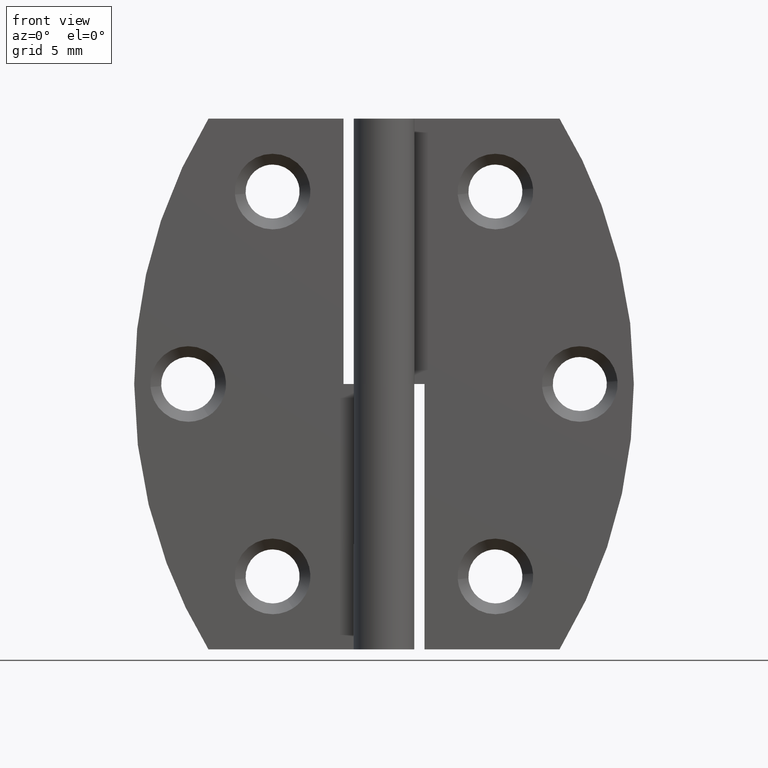
[diagram: clean part render]
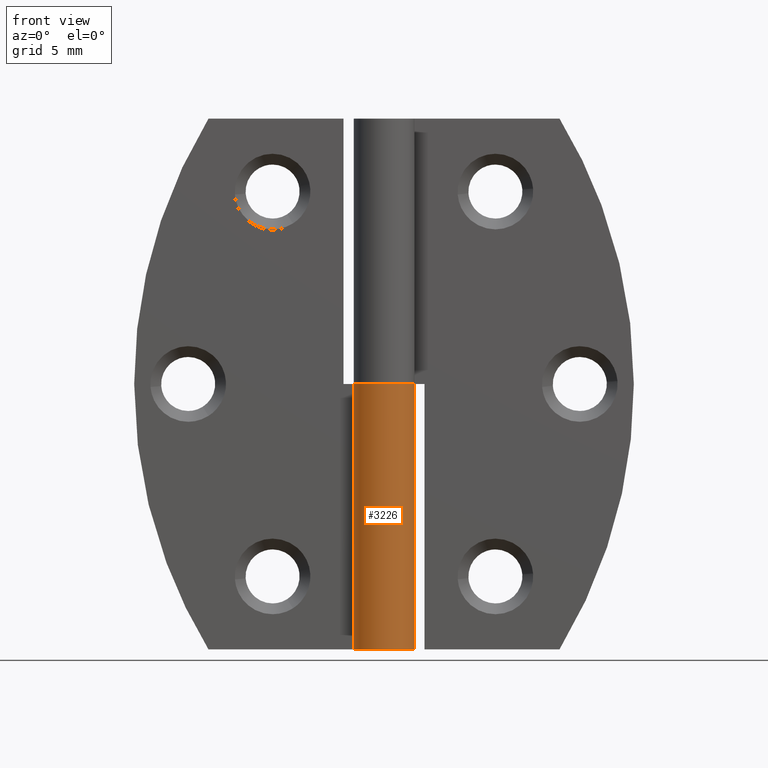
[diagram: same view with one face highlighted and labeled with its STEP entity id]
A machine part, front view. The second image highlights one B-rep face of the part: STEP entity #3226.
In plain terms, the highlighted face is a freeform B-spline surface patch.
Its self-contained STEP definition (entity closure, byte-faithful):
#3026=CARTESIAN_POINT('',(-1.903286631067430,1.200000000000000,19.650002000000001));
#3027=VERTEX_POINT('',#3026);
#3033=CARTESIAN_POINT('',(1.377686E-016,2.250000000000000,19.650002000000001));
#3034=VERTEX_POINT('',#3033);
#3035=CARTESIAN_POINT('',(-1.903286631067428,1.200000000000000,19.650002000000001));
#3036=CARTESIAN_POINT('',(-2.833393400139309,-0.275216482533193,19.650002000000008));
#3037=CARTESIAN_POINT('',(-1.636767137465296,-1.543856644158925,19.650002000000001));
#3038=CARTESIAN_POINT('',(-0.440140874791284,-2.812496805784658,19.650002000000008));
#3039=CARTESIAN_POINT('',(1.086853255964208,-1.970088830484555,19.650002000000001));
#3040=CARTESIAN_POINT('',(2.613847386719699,-1.127680855184451,19.650002000000008));
#3041=CARTESIAN_POINT('',(2.178898789364739,0.561159572407774,19.650002000000001));
#3042=CARTESIAN_POINT('',(1.743950192009778,2.250000000000000,19.650002000000008));
#3043=CARTESIAN_POINT('',(0.0,2.250000000000000,19.650002000000001));
#3051=(BOUNDED_CURVE()B_SPLINE_CURVE(2,(#3035,#3036,#3037,#3038,#3039,#3040,#3041,#3042,#3043),.UNSPECIFIED.,.F.,.U.)B_SPLINE_CURVE_WITH_KNOTS((3,2,2,2,3),(0.0,0.250000000000000,0.500000000000000,0.750000000000000,1.0),.UNSPECIFIED.)CURVE()GEOMETRIC_REPRESENTATION_ITEM()RATIONAL_B_SPLINE_CURVE((1.0,0.790381001290977,1.0,0.790381001290977,1.0,0.790381001290977,1.0,0.790381001290977,1.0))REPRESENTATION_ITEM(''));
#3052=EDGE_CURVE('',#3027,#3034,#3051,.T.);
#3074=CARTESIAN_POINT('',(1.377682E-016,2.250000000000000,0.0));
#3075=VERTEX_POINT('',#3074);
#3081=CARTESIAN_POINT('',(-1.903286631067430,1.200000000000000,0.0));
#3082=VERTEX_POINT('',#3081);
#3083=CARTESIAN_POINT('',(0.0,2.250000000000000,0.0));
#3084=CARTESIAN_POINT('',(1.743950192009777,2.250000000000000,0.0));
#3085=CARTESIAN_POINT('',(2.178898789364738,0.561159572407775,0.0));
#3086=CARTESIAN_POINT('',(2.613847386719701,-1.127680855184450,0.0));
#3087=CARTESIAN_POINT('',(1.086853255964209,-1.970088830484554,0.0));
#3088=CARTESIAN_POINT('',(-0.440140874791282,-2.812496805784658,0.0));
#3089=CARTESIAN_POINT('',(-1.636767137465296,-1.543856644158926,0.0));
#3090=CARTESIAN_POINT('',(-2.833393400139309,-0.275216482533195,0.0));
#3091=CARTESIAN_POINT('',(-1.903286631067429,1.199999999999998,0.0));
#3099=(BOUNDED_CURVE()B_SPLINE_CURVE(2,(#3083,#3084,#3085,#3086,#3087,#3088,#3089,#3090,#3091),.UNSPECIFIED.,.F.,.U.)B_SPLINE_CURVE_WITH_KNOTS((3,2,2,2,3),(0.0,0.250000000000000,0.500000000000000,0.750000000000000,1.0),.UNSPECIFIED.)CURVE()GEOMETRIC_REPRESENTATION_ITEM()RATIONAL_B_SPLINE_CURVE((1.0,0.790381001290977,1.0,0.790381001290977,1.0,0.790381001290977,1.0,0.790381001290977,1.0))REPRESENTATION_ITEM(''));
#3100=EDGE_CURVE('',#3075,#3082,#3099,.T.);
#3168=CARTESIAN_POINT('',(1.377686E-016,2.250000000000000,19.650002000000001));
#3169=CARTESIAN_POINT('',(1.377682E-016,2.250000000000000,0.0));
#3170=QUASI_UNIFORM_CURVE('',1,(#3168,#3169),.UNSPECIFIED.,.F.,.U.);
#3171=EDGE_CURVE('',#3034,#3075,#3170,.T.);
#3194=CARTESIAN_POINT('',(-1.849131859090038,1.281878062726021,20.141252050000009));
#3195=CARTESIAN_POINT('',(-1.849131859090038,1.281878062726021,-0.503531301250000));
#3196=CARTESIAN_POINT('',(-3.451086298081092,-1.028969650549959,20.141252050000006));
#3197=CARTESIAN_POINT('',(-3.451086298081092,-1.028969650549959,-0.503531301250000));
#3198=CARTESIAN_POINT('',(-0.845204983594111,-2.085216663972278,20.141252050000009));
#3199=CARTESIAN_POINT('',(-0.845204983594111,-2.085216663972278,-0.503531301250000));
#3200=CARTESIAN_POINT('',(1.760676330892872,-3.141463677394598,20.141252050000006));
#3201=CARTESIAN_POINT('',(1.760676330892872,-3.141463677394598,-0.503531301250000));
#3202=CARTESIAN_POINT('',(2.219802631008589,-0.367391180306962,20.141252050000009));
#3203=CARTESIAN_POINT('',(2.219802631008589,-0.367391180306962,-0.503531301250000));
#3204=CARTESIAN_POINT('',(2.678928931124306,2.406681316780672,20.141252050000006));
#3205=CARTESIAN_POINT('',(2.678928931124306,2.406681316780672,-0.503531301250000));
#3206=CARTESIAN_POINT('',(-0.128305550198389,2.246338729085239,20.141252050000009));
#3207=CARTESIAN_POINT('',(-0.128305550198389,2.246338729085239,-0.503531301250000));
#3215=(BOUNDED_SURFACE()B_SPLINE_SURFACE(1,2,((#3194,#3196,#3198,#3200,#3202,#3204,#3206),(#3195,#3197,#3199,#3201,#3203,#3205,#3207)),.UNSPECIFIED.,.F.,.F.,.U.)B_SPLINE_SURFACE_WITH_KNOTS((2,2),(3,2,2,3),(0.0,20.644783351250009),(0.0,4.324960557751285,8.649921115502570,12.974881673253851),.UNSPECIFIED.)GEOMETRIC_REPRESENTATION_ITEM()RATIONAL_B_SPLINE_SURFACE(((1.0,0.624788514543960,1.0,0.624788514543960,1.0,0.624788514543960,1.0),(1.0,0.624788514543960,1.0,0.624788514543960,1.0,0.624788514543960,1.0)))REPRESENTATION_ITEM('')SURFACE());
#3216=ORIENTED_EDGE('',*,*,#3052,.F.);
#3217=CARTESIAN_POINT('',(-1.903286631067430,1.200000000000000,19.650002000000001));
#3218=CARTESIAN_POINT('',(-1.903286631067430,1.200000000000000,0.0));
#3219=QUASI_UNIFORM_CURVE('',1,(#3217,#3218),.UNSPECIFIED.,.F.,.U.);
#3220=EDGE_CURVE('',#3027,#3082,#3219,.T.);
#3221=ORIENTED_EDGE('',*,*,#3220,.T.);
#3222=ORIENTED_EDGE('',*,*,#3100,.F.);
#3223=ORIENTED_EDGE('',*,*,#3171,.F.);
#3224=EDGE_LOOP('',(#3216,#3221,#3222,#3223));
#3225=FACE_OUTER_BOUND('',#3224,.T.);
#3226=ADVANCED_FACE('',(#3225),#3215,.T.);